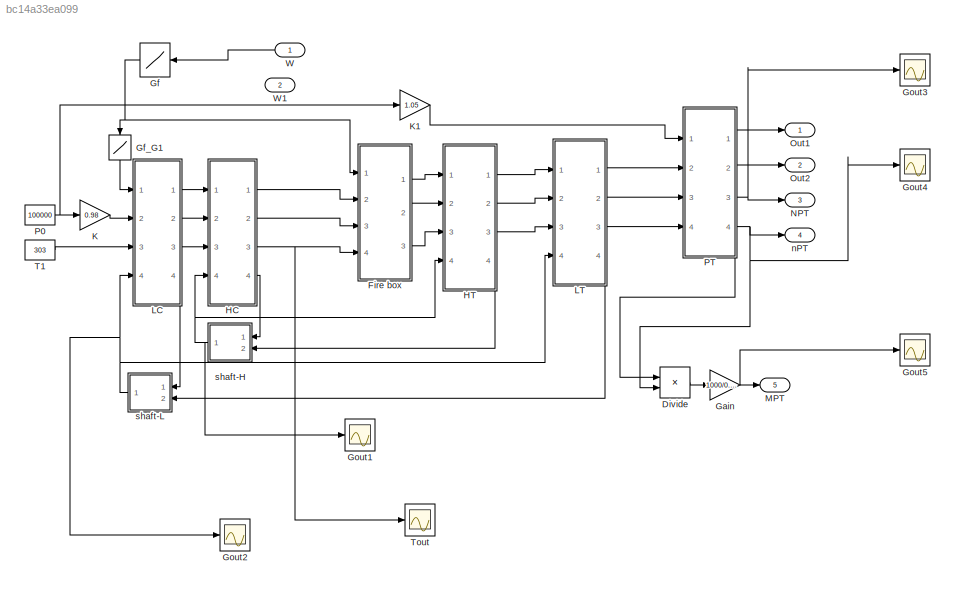
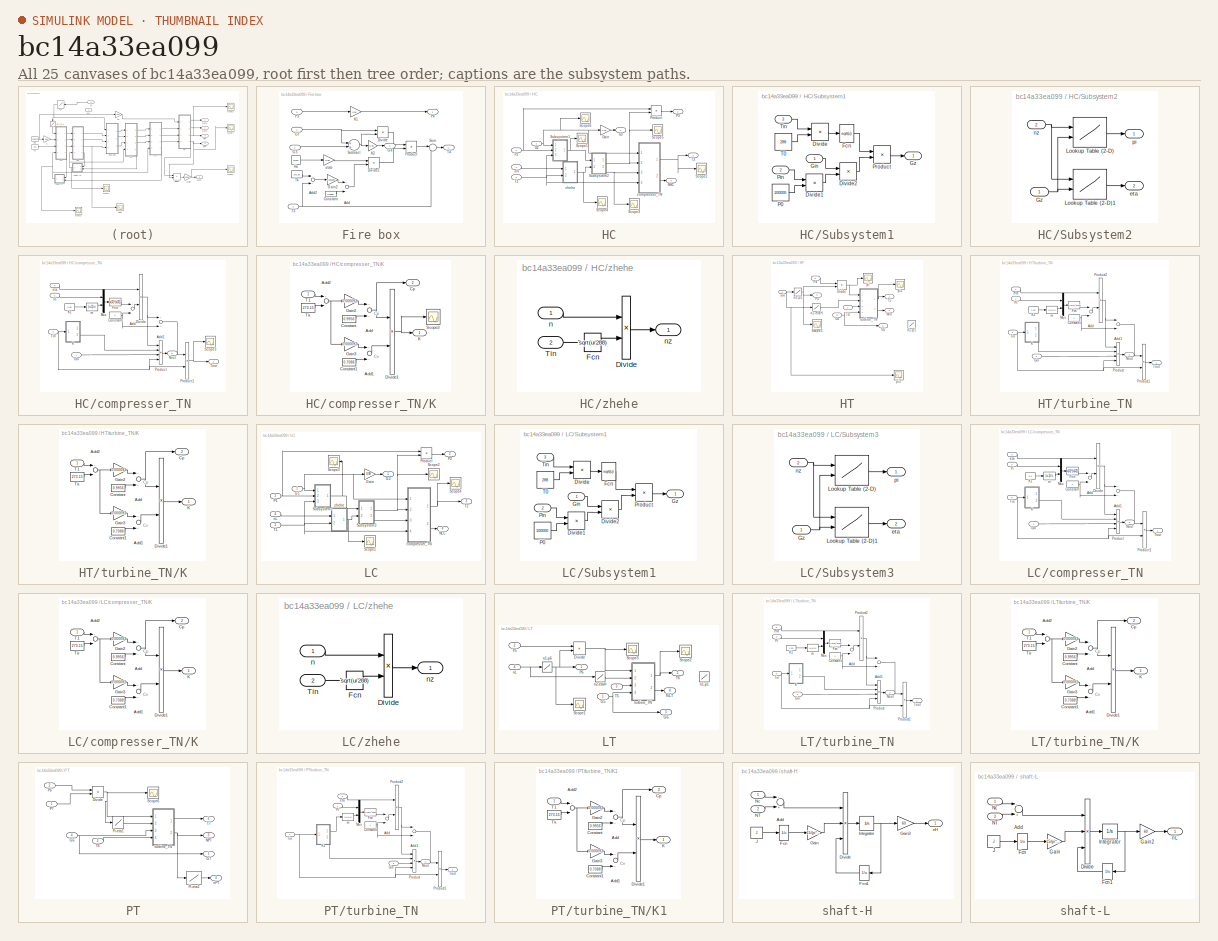
[diagram: thumbnail index - all 25 canvases of the model, root first then tree order]
MODEL slx_bc14a33ea099
KIND model
BLOCK [Product] Divide
  InputSameDT = off
  Inputs = */
  OutDataTypeStr = Inherit: Inherit via internal rule
  Ports = [2, 1]
  RndMeth = Floor
  SaturateOnIntegerOverflow = off
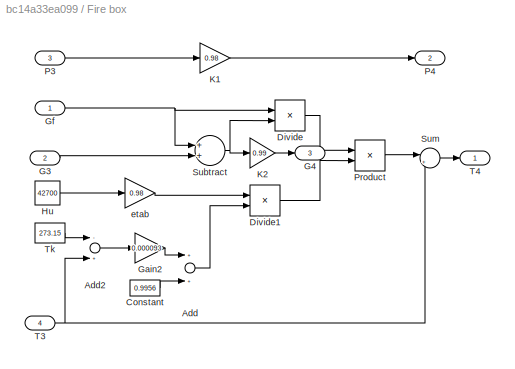
BLOCK [SubSystem] Fire box
  Ports = [4, 3]
  RequestExecContextInheritance = off
BLOCK [Sum] Fire box/Add
  InputSameDT = off
  OutDataTypeStr = Inherit: Inherit via internal rule
  Ports = [2, 1]
  SaturateOnIntegerOverflow = off
BLOCK [Sum] Fire box/Add2
  InputSameDT = off
  Inputs = -+
  OutDataTypeStr = Inherit: Inherit via internal rule
  Ports = [2, 1]
  SaturateOnIntegerOverflow = off
BLOCK [Constant] Fire box/Constant
  Value = 0.9956
BLOCK [Product] Fire box/Divide
  InputSameDT = off
  Inputs = */
  OutDataTypeStr = Inherit: Inherit via internal rule
  Ports = [2, 1]
  RndMeth = Floor
  SaturateOnIntegerOverflow = off
BLOCK [Product] Fire box/Divide1
  InputSameDT = off
  Inputs = */
  OutDataTypeStr = Inherit: Inherit via internal rule
  Ports = [2, 1]
  RndMeth = Floor
  SaturateOnIntegerOverflow = off
BLOCK [Inport] Fire box/G3
  IconDisplay = Port number
  Port = 2
BLOCK [Outport] Fire box/G4
  IconDisplay = Port number
  Port = 3
BLOCK [Gain] Fire box/Gain2
  Gain = 0.000093
  OutDataTypeStr = Inherit: Inherit via internal rule
  ParamDataTypeStr = Inherit: Inherit via internal rule
  SaturateOnIntegerOverflow = off
BLOCK [Inport] Fire box/Gf
  IconDisplay = Port number
BLOCK [Constant] Fire box/Hu
  Value = 42700
BLOCK [Gain] Fire box/K1
  Gain = 0.98
  OutDataTypeStr = Inherit: Inherit via internal rule
  ParamDataTypeStr = Inherit: Inherit via internal rule
  SaturateOnIntegerOverflow = off
BLOCK [Gain] Fire box/K2
  Gain = 0.99
  OutDataTypeStr = Inherit: Inherit via internal rule
  ParamDataTypeStr = Inherit: Inherit via internal rule
  SaturateOnIntegerOverflow = off
BLOCK [Inport] Fire box/P3
  IconDisplay = Port number
  Port = 3
BLOCK [Outport] Fire box/P4
  IconDisplay = Port number
  Port = 2
BLOCK [Product] Fire box/Product
  InputSameDT = off
  OutDataTypeStr = Inherit: Inherit via internal rule
  Ports = [2, 1]
  SaturateOnIntegerOverflow = off
BLOCK [Sum] Fire box/Subtract
  InputSameDT = off
  OutDataTypeStr = Inherit: Inherit via internal rule
  Ports = [2, 1]
  SaturateOnIntegerOverflow = off
BLOCK [Sum] Fire box/Sum
  IconShape = round
  InputSameDT = off
  Inputs = |++
  OutDataTypeStr = Inherit: Inherit via internal rule
  Ports = [2, 1]
  SaturateOnIntegerOverflow = off
BLOCK [Inport] Fire box/T3
  IconDisplay = Port number
  Port = 4
BLOCK [Outport] Fire box/T4
  IconDisplay = Port number
BLOCK [Constant] Fire box/Tk
  Value = 273.15
BLOCK [Gain] Fire box/etab
  Gain = 0.98
  OutDataTypeStr = Inherit: Inherit via internal rule
  ParamDataTypeStr = Inherit: Inherit via internal rule
  SaturateOnIntegerOverflow = off
BLOCK [Gain] Gain
  Gain = 1000/0.7355
  OutDataTypeStr = Inherit: Inherit via internal rule
  ParamDataTypeStr = Inherit: Inherit via internal rule
  SaturateOnIntegerOverflow = off
BLOCK [Lookup] Gf
  InputValues = [0,0.03,0.07,0.09,0.11,0.13,0.17,0.2,0.23,0.26,0.28,0.3,0.32,0.34,0.35,0.38,0.4,0.42,0.44,0.47,0.49,0.5,0.52,0.54,0.55,0.59,0.61,0.64,0.66,0.68,0.7,0.72,0.74,0.77,0.81,0.83,0.85,0.88,0.93,0.95,0.97,1]
  SaturateOnIntegerOverflow = off
  Table = [0.172,0.236,0.331,0.331,0.366,0.411,0.488,0.536,0.582,0.605,0.644,0.682,0.698,0.728,0.727,0.783,0.783,0.813,0.857,0.886,0.935,0.949,0.95,0.975,0.999,1.022,1.069,1.149,1.153,1.184,1.206,1.233,1.256,1.271,1.325,1.383,1.383,1.439,1.481,1.504,1.52,1.574]
BLOCK [Lookup] Gf_G1
  InputValues = [0.172,0.236,0.331,0.366,0.411,0.488,0.536,0.582,0.605,0.644,0.682,0.698,0.727,0.728,0.783,0.813,0.857,0.886,0.935,0.949,0.95,0.975,0.999,1.022,1.069,1.149,1.153,1.184,1.206,1.233,1.256,1.271,1.325,1.383,1.439,1.481,1.504,1.52,1.574]
  SaturateOnIntegerOverflow = off
  Table = [20.01, 25.93, 38.77,  43.65, 45.94, 51.85, 54.70, 56.85, 59.03, 61.91, 60.44, 61.58, 62.93, 63.04, 65.71,   67.00, 69.52, 70.63, 73.19, 73.46, 73.44, 73.83, 75.62, 76.39, 78.27, 81.17, 81.50, 82.44, 83.44, 84.31, 85.30, 86.17, 87.93, 89.72, 91.51, 93.65, 94.63, 94.92, 97.64]
BLOCK [Scope] Gout1
  DataFormat = StructureWithTime
  Floating = off
  NumInputPorts = 1
  Ports = [1]
  SampleTime = 0
  ShowLegends = off
  TimeRange = 10
  ZoomMode = yonly
BLOCK [Scope] Gout2
  DataFormat = StructureWithTime
  Floating = off
  NumInputPorts = 1
  Ports = [1]
  SampleTime = 0
  SaveName = ScopeData3
  ShowLegends = off
  TimeRange = 10
  ZoomMode = yonly
BLOCK [Scope] Gout3
  DataFormat = StructureWithTime
  Floating = off
  NumInputPorts = 1
  Ports = [1]
  SampleTime = 0
  SaveName = ScopeData21
  ShowLegends = off
  TimeRange = 10
  ZoomMode = yonly
BLOCK [Scope] Gout4
  DataFormat = StructureWithTime
  Floating = off
  NumInputPorts = 1
  Ports = [1]
  SampleTime = 0
  SaveName = ScopeData2
  ShowLegends = off
  TimeRange = 10
  ZoomMode = yonly
BLOCK [Scope] Gout5
  DataFormat = StructureWithTime
  Floating = off
  NumInputPorts = 1
  Ports = [1]
  SampleTime = 0
  SaveName = ScopeData5
  ShowLegends = off
  TimeRange = 10
  ZoomMode = yonly
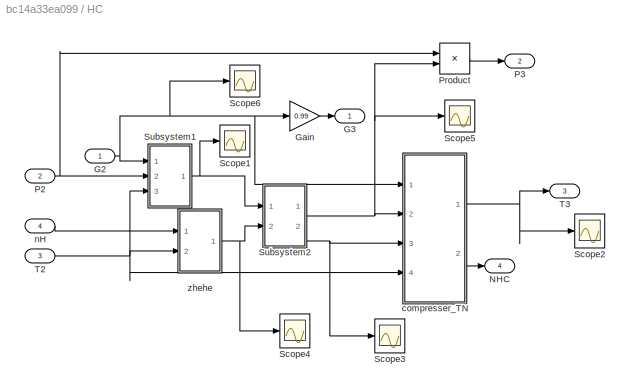
BLOCK [SubSystem] HC
  Ports = [4, 4]
  RequestExecContextInheritance = off
BLOCK [Inport] HC/G2
  IconDisplay = Port number
BLOCK [Outport] HC/G3
  IconDisplay = Port number
BLOCK [Gain] HC/Gain
  Gain = 0.99
  OutDataTypeStr = Inherit: Inherit via internal rule
  ParamDataTypeStr = Inherit: Inherit via internal rule
  SaturateOnIntegerOverflow = off
BLOCK [Outport] HC/NHC
  IconDisplay = Port number
  Port = 4
BLOCK [Inport] HC/P2
  IconDisplay = Port number
  Port = 2
BLOCK [Outport] HC/P3
  IconDisplay = Port number
  Port = 2
BLOCK [Product] HC/Product
  InputSameDT = off
  OutDataTypeStr = Inherit: Inherit via internal rule
  Ports = [2, 1]
  SaturateOnIntegerOverflow = off
BLOCK [Scope] HC/Scope1
  DataFormat = StructureWithTime
  Floating = off
  NumInputPorts = 1
  Ports = [1]
  SampleTime = 0
  SaveName = ScopeData16
  ShowLegends = off
  YMax = 3127.38
  YMin = 2829.54
BLOCK [Scope] HC/Scope2
  DataFormat = StructureWithTime
  Floating = off
  NumInputPorts = 1
  Ports = [1]
  SampleTime = 0
  SaveName = ScopeData29
  ShowLegends = off
  YMax = 3127.38
  YMin = 2829.54
BLOCK [Scope] HC/Scope3
  DataFormat = StructureWithTime
  Floating = off
  NumInputPorts = 1
  Ports = [1]
  SampleTime = 0
  SaveName = ScopeData24
  ShowLegends = off
  YMax = 3127.38
  YMin = 2829.54
BLOCK [Scope] HC/Scope4
  DataFormat = StructureWithTime
  Floating = off
  NumInputPorts = 1
  Ports = [1]
  SampleTime = 0
  SaveName = ScopeData31
  ShowLegends = off
  YMax = 3127.38
  YMin = 2829.54
BLOCK [Scope] HC/Scope5
  DataFormat = StructureWithTime
  Floating = off
  NumInputPorts = 1
  Ports = [1]
  SampleTime = 0
  SaveName = ScopeData10
  ShowLegends = off
  YMax = 3127.38
  YMin = 2829.54
BLOCK [Scope] HC/Scope6
  DataFormat = StructureWithTime
  Floating = off
  NumInputPorts = 1
  Ports = [1]
  SampleTime = 0
  SaveName = ScopeData15
  ShowLegends = off
  YMax = 3127.38
  YMin = 2829.54
BLOCK [SubSystem] HC/Subsystem1
  Ports = [3, 1]
  RequestExecContextInheritance = off
BLOCK [Product] HC/Subsystem1/Divide
  InputSameDT = off
  Inputs = */
  OutDataTypeStr = Inherit: Inherit via internal rule
  Ports = [2, 1]
  RndMeth = Floor
  SaturateOnIntegerOverflow = off
BLOCK [Product] HC/Subsystem1/Divide1
  InputSameDT = off
  Inputs = */
  OutDataTypeStr = Inherit: Inherit via internal rule
  Ports = [2, 1]
  RndMeth = Floor
  SaturateOnIntegerOverflow = off
BLOCK [Product] HC/Subsystem1/Divide2
  InputSameDT = off
  Inputs = */
  OutDataTypeStr = Inherit: Inherit via internal rule
  Ports = [2, 1]
  RndMeth = Floor
  SaturateOnIntegerOverflow = off
BLOCK [Fcn] HC/Subsystem1/Fcn
  Expr = sqrt(u)
BLOCK [Inport] HC/Subsystem1/Gin
  IconDisplay = Port number
BLOCK [Outport] HC/Subsystem1/Gz
  IconDisplay = Port number
BLOCK [Constant] HC/Subsystem1/P0
  Value = 100000
BLOCK [Inport] HC/Subsystem1/Pin
  IconDisplay = Port number
  Port = 2
BLOCK [Product] HC/Subsystem1/Product
  InputSameDT = off
  OutDataTypeStr = Inherit: Inherit via internal rule
  Ports = [2, 1]
  SaturateOnIntegerOverflow = off
BLOCK [Constant] HC/Subsystem1/T0
  Value = 288
BLOCK [Inport] HC/Subsystem1/Tin
  IconDisplay = Port number
  Port = 3
BLOCK [SubSystem] HC/Subsystem2
  Ports = [2, 2]
  RequestExecContextInheritance = off
BLOCK [Inport] HC/Subsystem2/Gz
  IconDisplay = Port number
BLOCK [Lookup2D] HC/Subsystem2/Lookup Table (2-D)
  ColumnIndex = [12:0.2:29]
  InputSameDT = off
  RowIndex = [6000 6300 6500 6800 7000 7300 7500 7800]
  SaturateOnIntegerOverflow = off
  Table = [2.4803 2.5510 2.6217 2.6924 2.7630 2.8337 2.9044 2.9751 3.0172 2.9863 2.9541 2.9206 2.8860 2.8500 2.8129 2.7745 2.7349 2.6940 2.6519 2.6085 2.5640 2.5181 2.4711 2.4906 2.5237 2.5573 2.5913 2.6257 2.6605 2.6958 2.7314 2.7675 2.8040 2.8409 2.8783 2.9161 2.9543 2.9929 3.0319 3.0714 3.1112 3.1515 3.1923 3.2334 3.2750 3.3169 3.3593 3.4022 3.4454 3.4891 3.5332 3.5777 3.6226 3.6679 3.7137 3.7599 3.8065 ...<+4432ch>
BLOCK [Lookup2D] HC/Subsystem2/Lookup Table (2-D)1
  ColumnIndex = [12:0.2:29]
  InputSameDT = off
  RowIndex = [6000 6300 6500 6800 7000 7300 7500 7800]
  SaturateOnIntegerOverflow = off
  Table = [0.8450 0.8455 0.8460 0.8465 0.8470 0.8480 0.8490 0.8495 0.8500 0.8510 0.8520 0.8530 0.8540 0.8540 0.8540 0.8525 0.8510 0.8500 0.8490 0.8480 0.8470 0.8460 0.8450 0.8455 0.8460 0.8460 0.8460 0.8470 0.8480 0.8480 0.8480 0.8480 0.8480 0.8485 0.8490 0.8490 0.8490 0.8490 0.8490 0.8490 0.8490 0.8490 0.8490 0.8490 0.8490 0.8490 0.8490 0.8490 0.8490 0.8495 0.8500 0.8500 0.8500 0.8500 0.8500 0.8500 0.8500 ...<+4425ch>
BLOCK [Outport] HC/Subsystem2/eta
  IconDisplay = Port number
  Port = 2
BLOCK [Inport] HC/Subsystem2/nz
  IconDisplay = Port number
  Port = 2
BLOCK [Outport] HC/Subsystem2/pi
  IconDisplay = Port number
BLOCK [Inport] HC/T2
  IconDisplay = Port number
  Port = 3
BLOCK [Outport] HC/T3
  IconDisplay = Port number
  Port = 3
BLOCK [SubSystem] HC/compresser_TN
  Ports = [4, 2]
  RequestExecContextInheritance = off
BLOCK [Sum] HC/compresser_TN/Add
  InputSameDT = off
  Inputs = +-
  OutDataTypeStr = Inherit: Inherit via internal rule
  Ports = [2, 1]
  SaturateOnIntegerOverflow = off
BLOCK [Sum] HC/compresser_TN/Add1
  InputSameDT = off
  OutDataTypeStr = Inherit: Inherit via internal rule
  Ports = [2, 1]
  SaturateOnIntegerOverflow = off
BLOCK [Constant] HC/compresser_TN/Constant
BLOCK [Product] HC/compresser_TN/Divide
  InputSameDT = off
  Inputs = /*
  OutDataTypeStr = Inherit: Inherit via internal rule
  Ports = [2, 1]
  RndMeth = Floor
  SaturateOnIntegerOverflow = off
BLOCK [Fcn] HC/compresser_TN/Fcn
  Expr = u[1]^(u[2])
BLOCK [Inport] HC/compresser_TN/Gin
  IconDisplay = Port number
BLOCK [SubSystem] HC/compresser_TN/K
  Ports = [1, 2]
  RequestExecContextInheritance = off
BLOCK [Sum] HC/compresser_TN/K/Add
  InputSameDT = off
  OutDataTypeStr = Inherit: Inherit via internal rule
  Ports = [2, 1]
  SaturateOnIntegerOverflow = off
BLOCK [Sum] HC/compresser_TN/K/Add1
  InputSameDT = off
  OutDataTypeStr = Inherit: Inherit via internal rule
  Ports = [2, 1]
  SaturateOnIntegerOverflow = off
BLOCK [Sum] HC/compresser_TN/K/Add2
  InputSameDT = off
  Inputs = +-
  OutDataTypeStr = Inherit: Inherit via internal rule
  Ports = [2, 1]
  SaturateOnIntegerOverflow = off
BLOCK [Constant] HC/compresser_TN/K/Constant
  Value = 0.9956
BLOCK [Constant] HC/compresser_TN/K/Constant1
  Value = 0.7088
BLOCK [Outport] HC/compresser_TN/K/Cp
  IconDisplay = Port number
  Port = 2
BLOCK [Product] HC/compresser_TN/K/Divide1
  InputSameDT = off
  Inputs = */
  OutDataTypeStr = Inherit: Inherit via internal rule
  Ports = [2, 1]
  RndMeth = Floor
  SaturateOnIntegerOverflow = off
BLOCK [Gain] HC/compresser_TN/K/Gain2
  Gain = 0.000093
  OutDataTypeStr = Inherit: Inherit via internal rule
  ParamDataTypeStr = Inherit: Inherit via internal rule
  SaturateOnIntegerOverflow = off
BLOCK [Gain] HC/compresser_TN/K/Gain3
  Gain = 0.000093
  OutDataTypeStr = Inherit: Inherit via internal rule
  ParamDataTypeStr = Inherit: Inherit via internal rule
  SaturateOnIntegerOverflow = off
BLOCK [Outport] HC/compresser_TN/K/K
  IconDisplay = Port number
BLOCK [Scope] HC/compresser_TN/K/Scope3
  DataFormat = StructureWithTime
  Floating = off
  NumInputPorts = 1
  Ports = [1]
  SampleTime = 0
  SaveName = ScopeData23
  ShowLegends = off
  YMax = 3127.38
  YMin = 2829.54
BLOCK [Inport] HC/compresser_TN/K/T1
  IconDisplay = Port number
BLOCK [Constant] HC/compresser_TN/K/Tk
  Value = 273.15
BLOCK [Constant] HC/compresser_TN/K1
  Value = 1.35
BLOCK [Mux] HC/compresser_TN/Mux
  DisplayOption = bar
  Inputs = 2
  Ports = [2, 1]
BLOCK [Outport] HC/compresser_TN/Nout
  IconDisplay = Port number
  Port = 2
BLOCK [Inport] HC/compresser_TN/Pi
  IconDisplay = Port number
  Port = 2
BLOCK [Product] HC/compresser_TN/Product
  InputSameDT = off
  Inputs = 4
  OutDataTypeStr = Inherit: Inherit via internal rule
  Ports = [4, 1]
  SaturateOnIntegerOverflow = off
BLOCK [Product] HC/compresser_TN/Product1
  InputSameDT = off
  OutDataTypeStr = Inherit: Inherit via internal rule
  Ports = [2, 1]
  SaturateOnIntegerOverflow = off
BLOCK [Scope] HC/compresser_TN/Scope3
  DataFormat = StructureWithTime
  Floating = off
  NumInputPorts = 1
  Ports = [1]
  SampleTime = 0
  SaveName = ScopeData18
  ShowLegends = off
  YMax = 3127.38
  YMin = 2829.54
BLOCK [Inport] HC/compresser_TN/Tin
  IconDisplay = Port number
  Port = 4
BLOCK [Outport] HC/compresser_TN/Tout
  IconDisplay = Port number
BLOCK [Inport] HC/compresser_TN/eta
  IconDisplay = Port number
  Port = 3
BLOCK [Fcn] HC/compresser_TN/m
  Expr = (u-1)/u
BLOCK [Inport] HC/nH
  IconDisplay = Port number
  Port = 4
BLOCK [SubSystem] HC/zhehe
  Ports = [2, 1]
  RequestExecContextInheritance = off
BLOCK [Product] HC/zhehe/Divide
  InputSameDT = off
  Inputs = */
  OutDataTypeStr = Inherit: Inherit via internal rule
  Ports = [2, 1]
  RndMeth = Floor
  SaturateOnIntegerOverflow = off
BLOCK [Fcn] HC/zhehe/Fcn
  Expr = sqrt(u/288)
BLOCK [Inport] HC/zhehe/Tin
  IconDisplay = Port number
  Port = 2
BLOCK [Inport] HC/zhehe/n
  IconDisplay = Port number
BLOCK [Outport] HC/zhehe/nz
  IconDisplay = Port number
BLOCK [SubSystem] HT
  Ports = [4, 4]
  RequestExecContextInheritance = off
BLOCK [Product] HT/Divide
  InputSameDT = off
  Inputs = */
  OutDataTypeStr = Inherit: Inherit via internal rule
  Ports = [2, 1]
  RndMeth = Floor
  SaturateOnIntegerOverflow = off
BLOCK [Inport] HT/G4
  IconDisplay = Port number
  Port = 3
BLOCK [Outport] HT/G5
  IconDisplay = Port number
BLOCK [Outport] HT/NHT
  IconDisplay = Port number
  Port = 4
BLOCK [Inport] HT/P4
  IconDisplay = Port number
  Port = 2
BLOCK [Outport] HT/P5
  IconDisplay = Port number
  Port = 2
BLOCK [Scope] HT/Scope3
  DataFormat = StructureWithTime
  Floating = off
  NumInputPorts = 1
  Ports = [1]
  SampleTime = 0
  SaveName = ScopeData34
  ShowLegends = off
  TimeRange = 100
  YMax = 25000
  YMin = 5000
  ZoomMode = yonly
BLOCK [Inport] HT/T4
  IconDisplay = Port number
BLOCK [Outport] HT/T5
  IconDisplay = Port number
  Port = 3
BLOCK [Lookup] HT/n2-etaH
  InputValues = [6000 6300 6500 6800 7000 7150 7300 7500 7800]
  SaturateOnIntegerOverflow = off
  Table = [0.81 0.83 0.85 0.87 0.88 0.87 0.86 0.855 0.85]
BLOCK [Lookup] HT/n2-p1
  InputValues = [6000 6503 6995 7498 8002 8505 8997 9500]
  SaturateOnIntegerOverflow = off
  Table = [139400 150700 186000 246700 332500 443400 575800 736100]
BLOCK [Lookup] HT/n2-p5
  InputValues = [5832,7212,7282,7644,7752,7853,8033,8092 8211 8392 8430 8452 8670 8767 8960 8999 9073]
  SaturateOnIntegerOverflow = off
  Table = [154000,269000,296000,361000,391000,419000,476000,494000 534000 596000 609000 616000 684000 719000 806000 814000 831000]
BLOCK [Inport] HT/nH
  IconDisplay = Port number
  Port = 4
BLOCK [Scope] HT/pi
  DataFormat = StructureWithTime
  Floating = off
  NumInputPorts = 1
  Ports = [1]
  SampleTime = 0
  SaveName = ScopeData17
  ShowLegends = off
  TimeRange = 100
  YMax = 3127.38
  YMin = 2829.54
BLOCK [Scope] HT/pi1
  DataFormat = StructureWithTime
  Floating = off
  NumInputPorts = 1
  Ports = [1]
  SampleTime = 0
  SaveName = ScopeData7
  ShowLegends = off
  TimeRange = 100
  YMax = 3127.38
  YMin = 2829.54
BLOCK [Scope] HT/pi2
  DataFormat = StructureWithTime
  Floating = off
  NumInputPorts = 1
  Ports = [1]
  SampleTime = 0
  SaveName = ScopeData35
  ShowLegends = off
  TimeRange = 100
  YMax = 3127.38
  YMin = 2829.54
BLOCK [SubSystem] HT/turbine_TN
  Ports = [4, 2]
  RequestExecContextInheritance = off
BLOCK [Sum] HT/turbine_TN/Add
  InputSameDT = off
  Inputs = -+
  OutDataTypeStr = Inherit: Inherit via internal rule
  Ports = [2, 1]
  SaturateOnIntegerOverflow = off
BLOCK [Sum] HT/turbine_TN/Add1
  InputSameDT = off
  Inputs = -+
  OutDataTypeStr = Inherit: Inherit via internal rule
  Ports = [2, 1]
  SaturateOnIntegerOverflow = off
BLOCK [Constant] HT/turbine_TN/Constant
BLOCK [Fcn] HT/turbine_TN/Fcn
  Expr = 1/(u[1]^u[2])
BLOCK [Inport] HT/turbine_TN/Gin
  IconDisplay = Port number
  Port = 4
BLOCK [SubSystem] HT/turbine_TN/K
  Ports = [1, 2]
  RequestExecContextInheritance = off
BLOCK [Sum] HT/turbine_TN/K/Add
  InputSameDT = off
  OutDataTypeStr = Inherit: Inherit via internal rule
  Ports = [2, 1]
  SaturateOnIntegerOverflow = off
BLOCK [Sum] HT/turbine_TN/K/Add1
  InputSameDT = off
  OutDataTypeStr = Inherit: Inherit via internal rule
  Ports = [2, 1]
  SaturateOnIntegerOverflow = off
BLOCK [Sum] HT/turbine_TN/K/Add2
  InputSameDT = off
  Inputs = +-
  OutDataTypeStr = Inherit: Inherit via internal rule
  Ports = [2, 1]
  SaturateOnIntegerOverflow = off
BLOCK [Constant] HT/turbine_TN/K/Constant
  Value = 0.9956
BLOCK [Constant] HT/turbine_TN/K/Constant1
  Value = 0.7088
BLOCK [Outport] HT/turbine_TN/K/Cp
  IconDisplay = Port number
  Port = 2
BLOCK [Product] HT/turbine_TN/K/Divide1
  InputSameDT = off
  Inputs = */
  OutDataTypeStr = Inherit: Inherit via internal rule
  Ports = [2, 1]
  RndMeth = Floor
  SaturateOnIntegerOverflow = off
BLOCK [Gain] HT/turbine_TN/K/Gain2
  Gain = 0.000093
  OutDataTypeStr = Inherit: Inherit via internal rule
  ParamDataTypeStr = Inherit: Inherit via internal rule
  SaturateOnIntegerOverflow = off
BLOCK [Gain] HT/turbine_TN/K/Gain3
  Gain = 0.000093
  OutDataTypeStr = Inherit: Inherit via internal rule
  ParamDataTypeStr = Inherit: Inherit via internal rule
  SaturateOnIntegerOverflow = off
BLOCK [Outport] HT/turbine_TN/K/K
  IconDisplay = Port number
BLOCK [Inport] HT/turbine_TN/K/T1
  IconDisplay = Port number
BLOCK [Constant] HT/turbine_TN/K/Tk
  Value = 273.15
BLOCK [Constant] HT/turbine_TN/K1
  Value = 1.33
BLOCK [Mux] HT/turbine_TN/Mux
  DisplayOption = bar
  Inputs = 2
  Ports = [2, 1]
BLOCK [Outport] HT/turbine_TN/Nout
  IconDisplay = Port number
  Port = 2
BLOCK [Inport] HT/turbine_TN/Pi
  IconDisplay = Port number
BLOCK [Product] HT/turbine_TN/Product
  InputSameDT = off
  Inputs = 4
  OutDataTypeStr = Inherit: Inherit via internal rule
  Ports = [4, 1]
  SaturateOnIntegerOverflow = off
BLOCK [Product] HT/turbine_TN/Product1
  InputSameDT = off
  OutDataTypeStr = Inherit: Inherit via internal rule
  Ports = [2, 1]
  SaturateOnIntegerOverflow = off
BLOCK [Product] HT/turbine_TN/Product2
  InputSameDT = off
  OutDataTypeStr = Inherit: Inherit via internal rule
  Ports = [2, 1]
  SaturateOnIntegerOverflow = off
BLOCK [Inport] HT/turbine_TN/Tin
  IconDisplay = Port number
  Port = 3
BLOCK [Outport] HT/turbine_TN/Tout
  IconDisplay = Port number
BLOCK [Inport] HT/turbine_TN/eta
  IconDisplay = Port number
  Port = 2
BLOCK [Fcn] HT/turbine_TN/m
  Expr = (u-1)/u
BLOCK [Gain] K
  Gain = 0.98
  OutDataTypeStr = Inherit: Inherit via internal rule
  ParamDataTypeStr = Inherit: Inherit via internal rule
  SaturateOnIntegerOverflow = off
BLOCK [Gain] K1
  Gain = 1.05
  OutDataTypeStr = Inherit: Inherit via internal rule
  ParamDataTypeStr = Inherit: Inherit via internal rule
  SaturateOnIntegerOverflow = off
BLOCK [SubSystem] LC
  Ports = [4, 4]
  RequestExecContextInheritance = off
BLOCK [Inport] LC/G1
  IconDisplay = Port number
BLOCK [Outport] LC/G2
  IconDisplay = Port number
BLOCK [Gain] LC/Gain
  Gain = 0.99
  OutDataTypeStr = Inherit: Inherit via internal rule
  ParamDataTypeStr = Inherit: Inherit via internal rule
  SaturateOnIntegerOverflow = off
BLOCK [Outport] LC/NLC
  IconDisplay = Port number
  Port = 4
BLOCK [Inport] LC/P1
  IconDisplay = Port number
  Port = 2
BLOCK [Outport] LC/P2
  IconDisplay = Port number
  Port = 2
BLOCK [Product] LC/Product
  InputSameDT = off
  OutDataTypeStr = Inherit: Inherit via internal rule
  Ports = [2, 1]
  SaturateOnIntegerOverflow = off
BLOCK [Scope] LC/Scope1
  DataFormat = StructureWithTime
  Floating = off
  NumInputPorts = 1
  Ports = [1]
  SampleTime = 0
  SaveName = ScopeData14
  ShowLegends = off
  YMax = 3127.38
  YMin = 2829.54
BLOCK [Scope] LC/Scope2
  DataFormat = StructureWithTime
  Floating = off
  NumInputPorts = 1
  Ports = [1]
  SampleTime = 0
  SaveName = ScopeData9
  ShowLegends = off
  YMax = 3127.38
  YMin = 2829.54
BLOCK [Scope] LC/Scope3
  DataFormat = StructureWithTime
  Floating = off
  NumInputPorts = 1
  Ports = [1]
  SampleTime = 0
  SaveName = ScopeData30
  ShowLegends = off
  YMax = 3127.38
  YMin = 2829.54
BLOCK [Scope] LC/Scope4
  DataFormat = StructureWithTime
  Floating = off
  NumInputPorts = 1
  Ports = [1]
  SampleTime = 0
  SaveName = ScopeData32
  ShowLegends = off
  TimeRange = 80
  YMax = 30000
  YMin = 5000
  ZoomMode = yonly
BLOCK [SubSystem] LC/Subsystem1
  Ports = [3, 1]
  RequestExecContextInheritance = off
BLOCK [Product] LC/Subsystem1/Divide
  InputSameDT = off
  Inputs = */
  OutDataTypeStr = Inherit: Inherit via internal rule
  Ports = [2, 1]
  RndMeth = Floor
  SaturateOnIntegerOverflow = off
BLOCK [Product] LC/Subsystem1/Divide1
  InputSameDT = off
  Inputs = */
  OutDataTypeStr = Inherit: Inherit via internal rule
  Ports = [2, 1]
  RndMeth = Floor
  SaturateOnIntegerOverflow = off
BLOCK [Product] LC/Subsystem1/Divide2
  InputSameDT = off
  Inputs = */
  OutDataTypeStr = Inherit: Inherit via internal rule
  Ports = [2, 1]
  RndMeth = Floor
  SaturateOnIntegerOverflow = off
BLOCK [Fcn] LC/Subsystem1/Fcn
  Expr = sqrt(u)
BLOCK [Inport] LC/Subsystem1/Gin
  IconDisplay = Port number
BLOCK [Outport] LC/Subsystem1/Gz
  IconDisplay = Port number
BLOCK [Constant] LC/Subsystem1/P0
  Value = 100000
BLOCK [Inport] LC/Subsystem1/Pin
  IconDisplay = Port number
  Port = 2
BLOCK [Product] LC/Subsystem1/Product
  InputSameDT = off
  OutDataTypeStr = Inherit: Inherit via internal rule
  Ports = [2, 1]
  SaturateOnIntegerOverflow = off
BLOCK [Constant] LC/Subsystem1/T0
  Value = 288
BLOCK [Inport] LC/Subsystem1/Tin
  IconDisplay = Port number
  Port = 3
BLOCK [SubSystem] LC/Subsystem3
  Ports = [2, 2]
  RequestExecContextInheritance = off
BLOCK [Inport] LC/Subsystem3/Gz
  IconDisplay = Port number
BLOCK [Lookup2D] LC/Subsystem3/Lookup Table (2-D)
  ColumnIndex = [20:0.5:100]
  InputSameDT = off
  RowIndex = [4300 5000 5500 6000 6500 7000 7500 8000]
  SaturateOnIntegerOverflow = off
  Table = [1.1111 1.1471 1.1832 1.2192 1.2552 1.2913 1.3273 1.3633 1.3994 1.4354 1.4714 1.5074 1.5435 1.5795 1.6155 1.6516 1.6876 1.7236 1.8750 1.8749 1.8720 1.8623 1.8457 1.8223 1.7920 1.7549 1.7109 1.6601 1.6024 1.5378 1.4664 1.3881 1.2420 1.2701 1.2983 1.3265 1.3547 1.3828 1.4110 1.4392 1.4673 1.4955 1.5237 1.5519 1.5800 1.6082 1.6364 1.6645 1.6927 1.7209 1.7491 1.7772 1.8054 1.8336 1.8617 1.8899 1.9181 ...<+8625ch>
BLOCK [Lookup2D] LC/Subsystem3/Lookup Table (2-D)1
  ColumnIndex = [20:0.5:100]
  InputSameDT = off
  RowIndex = [4300 5000 5500 6000 6500 7000 7500 8000]
  SaturateOnIntegerOverflow = off
  Table = [0.8303 0.8307 0.8310 0.8314 0.8317 0.8321 0.8324 0.8327 0.8331 0.8335 0.8338 0.8341 0.8345 0.8348 0.8351 0.8355 0.8358 0.8361 0.8371 0.8390 0.8403 0.8412 0.8415 0.8412 0.8405 0.8392 0.8373 0.8350 0.8321 0.8287 0.8247 0.8203 0.8200 0.8200 0.8200 0.8200 0.8200 0.8200 0.8200 0.8200 0.8200 0.8200 0.8200 0.8200 0.8200 0.8200 0.8200 0.8200 0.8200 0.8200 0.8200 0.8200 0.8200 0.8200 0.8200 0.8200 0.8200 ...<+8625ch>
BLOCK [Outport] LC/Subsystem3/eta
  IconDisplay = Port number
  Port = 2
BLOCK [Inport] LC/Subsystem3/nz
  IconDisplay = Port number
  Port = 2
BLOCK [Outport] LC/Subsystem3/pi
  IconDisplay = Port number
BLOCK [Inport] LC/T1
  IconDisplay = Port number
  Port = 3
BLOCK [Outport] LC/T2
  IconDisplay = Port number
  Port = 3
BLOCK [SubSystem] LC/compresser_TN
  Ports = [4, 2]
  RequestExecContextInheritance = off
BLOCK [Sum] LC/compresser_TN/Add
  InputSameDT = off
  Inputs = +-
  OutDataTypeStr = Inherit: Inherit via internal rule
  Ports = [2, 1]
  SaturateOnIntegerOverflow = off
BLOCK [Sum] LC/compresser_TN/Add1
  InputSameDT = off
  OutDataTypeStr = Inherit: Inherit via internal rule
  Ports = [2, 1]
  SaturateOnIntegerOverflow = off
BLOCK [Constant] LC/compresser_TN/Constant
BLOCK [Product] LC/compresser_TN/Divide
  InputSameDT = off
  Inputs = /*
  OutDataTypeStr = Inherit: Inherit via internal rule
  Ports = [2, 1]
  RndMeth = Floor
  SaturateOnIntegerOverflow = off
BLOCK [Fcn] LC/compresser_TN/Fcn
  Expr = u[1]^(u[2])
BLOCK [Inport] LC/compresser_TN/Gin
  IconDisplay = Port number
BLOCK [SubSystem] LC/compresser_TN/K
  Ports = [1, 2]
  RequestExecContextInheritance = off
BLOCK [Sum] LC/compresser_TN/K/Add
  InputSameDT = off
  OutDataTypeStr = Inherit: Inherit via internal rule
  Ports = [2, 1]
  SaturateOnIntegerOverflow = off
BLOCK [Sum] LC/compresser_TN/K/Add1
  InputSameDT = off
  OutDataTypeStr = Inherit: Inherit via internal rule
  Ports = [2, 1]
  SaturateOnIntegerOverflow = off
BLOCK [Sum] LC/compresser_TN/K/Add2
  InputSameDT = off
  Inputs = +-
  OutDataTypeStr = Inherit: Inherit via internal rule
  Ports = [2, 1]
  SaturateOnIntegerOverflow = off
BLOCK [Constant] LC/compresser_TN/K/Constant
  Value = 0.9956
BLOCK [Constant] LC/compresser_TN/K/Constant1
  Value = 0.7088
BLOCK [Outport] LC/compresser_TN/K/Cp
  IconDisplay = Port number
  Port = 2
BLOCK [Product] LC/compresser_TN/K/Divide1
  InputSameDT = off
  Inputs = */
  OutDataTypeStr = Inherit: Inherit via internal rule
  Ports = [2, 1]
  RndMeth = Floor
  SaturateOnIntegerOverflow = off
BLOCK [Gain] LC/compresser_TN/K/Gain2
  Gain = 0.000093
  OutDataTypeStr = Inherit: Inherit via internal rule
  ParamDataTypeStr = Inherit: Inherit via internal rule
  SaturateOnIntegerOverflow = off
BLOCK [Gain] LC/compresser_TN/K/Gain3
  Gain = 0.000093
  OutDataTypeStr = Inherit: Inherit via internal rule
  ParamDataTypeStr = Inherit: Inherit via internal rule
  SaturateOnIntegerOverflow = off
BLOCK [Outport] LC/compresser_TN/K/K
  IconDisplay = Port number
BLOCK [Inport] LC/compresser_TN/K/T1
  IconDisplay = Port number
BLOCK [Constant] LC/compresser_TN/K/Tk
  Value = 273.15
BLOCK [Constant] LC/compresser_TN/K1
  Value = 1.4
BLOCK [Mux] LC/compresser_TN/Mux
  DisplayOption = bar
  Inputs = 2
  Ports = [2, 1]
BLOCK [Outport] LC/compresser_TN/Nout
  IconDisplay = Port number
  Port = 2
BLOCK [Inport] LC/compresser_TN/Pi
  IconDisplay = Port number
  Port = 2
BLOCK [Product] LC/compresser_TN/Product
  InputSameDT = off
  Inputs = 4
  OutDataTypeStr = Inherit: Inherit via internal rule
  Ports = [4, 1]
  SaturateOnIntegerOverflow = off
BLOCK [Product] LC/compresser_TN/Product1
  InputSameDT = off
  OutDataTypeStr = Inherit: Inherit via internal rule
  Ports = [2, 1]
  SaturateOnIntegerOverflow = off
BLOCK [Inport] LC/compresser_TN/Tin
  IconDisplay = Port number
  Port = 4
BLOCK [Outport] LC/compresser_TN/Tout
  IconDisplay = Port number
BLOCK [Inport] LC/compresser_TN/eta
  IconDisplay = Port number
  Port = 3
BLOCK [Fcn] LC/compresser_TN/m
  Expr = (u-1)/u
BLOCK [Inport] LC/nL
  IconDisplay = Port number
  Port = 4
BLOCK [SubSystem] LC/zhehe
  Ports = [2, 1]
  RequestExecContextInheritance = off
BLOCK [Product] LC/zhehe/Divide
  InputSameDT = off
  Inputs = */
  OutDataTypeStr = Inherit: Inherit via internal rule
  Ports = [2, 1]
  RndMeth = Floor
  SaturateOnIntegerOverflow = off
BLOCK [Fcn] LC/zhehe/Fcn
  Expr = sqrt(u/288)
BLOCK [Inport] LC/zhehe/Tin
  IconDisplay = Port number
  Port = 2
BLOCK [Inport] LC/zhehe/n
  IconDisplay = Port number
BLOCK [Outport] LC/zhehe/nz
  IconDisplay = Port number
BLOCK [SubSystem] LT
  Ports = [4, 4]
  RequestExecContextInheritance = off
BLOCK [Product] LT/Divide
  InputSameDT = off
  Inputs = */
  OutDataTypeStr = Inherit: Inherit via internal rule
  Ports = [2, 1]
  RndMeth = Floor
  SaturateOnIntegerOverflow = off
BLOCK [Inport] LT/G5
  IconDisplay = Port number
BLOCK [Outport] LT/G6
  IconDisplay = Port number
  Port = 3
BLOCK [Outport] LT/NLT
  IconDisplay = Port number
  Port = 4
BLOCK [Inport] LT/P5
  IconDisplay = Port number
  Port = 2
BLOCK [Outport] LT/P6
  IconDisplay = Port number
BLOCK [Scope] LT/Scope1
  DataFormat = StructureWithTime
  Floating = off
  NumInputPorts = 1
  Ports = [1]
  SampleTime = 0
  SaveName = ScopeData28
  ShowLegends = off
  TimeRange = 100
  YMax = 25000
  YMin = 5000
  ZoomMode = yonly
BLOCK [Scope] LT/Scope2
  DataFormat = StructureWithTime
  Floating = off
  NumInputPorts = 1
  Ports = [1]
  SampleTime = 0
  SaveName = ScopeData4
  ShowLegends = off
  TimeRange = 100
  YMax = 25000
  YMin = 5000
  ZoomMode = yonly
BLOCK [Scope] LT/Scope3
  DataFormat = StructureWithTime
  Floating = off
  NumInputPorts = 1
  Ports = [1]
  SampleTime = 0
  SaveName = ScopeData20
  ShowLegends = off
  TimeRange = 100
  YMax = 25000
  YMin = 5000
  ZoomMode = yonly
BLOCK [Inport] LT/T5
  IconDisplay = Port number
  Port = 3
BLOCK [Outport] LT/T6
  IconDisplay = Port number
  Port = 2
BLOCK [Lookup] LT/n1-p1
  InputValues = [2849,4651,4850,5410,5586,5742,6024,6092,6102,6211,6385,6425 6435 6609 6698  6732 7015  7080 7185 ]
  SaturateOnIntegerOverflow = off
  Table = [101000,131000,141000,161000,171000,181000,201000,201000,211000,221000,241000,251000 251000 281000 291000  301000 321000  331000 341000]
BLOCK [Lookup] LT/n1-p6
  InputValues = [2849,4651,4850,5410,5586,5742,6024,6092,6102,6211,6385,6425,6435,6609,6698,6732,7015,7080,7185]
  SaturateOnIntegerOverflow = off
  Table = [113000,150000,157000,180000,190000,201000,221000,229000,229500,242000,267000,272000,277000,306000,321000,322000,354000,360000,371000]
BLOCK [Lookup] LT/n2-etaH
  InputValues = [4300 5000 5500 6000 6500 7000 7500 8000 9000 9500]
  SaturateOnIntegerOverflow = off
  Table = [0.82 0.83 0.835 0.84 0.85 0.86 0.875 0.87 0.865 0.86]
BLOCK [Inport] LT/nL
  IconDisplay = Port number
  Port = 4
BLOCK [SubSystem] LT/turbine_TN
  Ports = [4, 2]
  RequestExecContextInheritance = off
BLOCK [Sum] LT/turbine_TN/Add
  InputSameDT = off
  Inputs = -+
  OutDataTypeStr = Inherit: Inherit via internal rule
  Ports = [2, 1]
  SaturateOnIntegerOverflow = off
BLOCK [Sum] LT/turbine_TN/Add1
  InputSameDT = off
  Inputs = -+
  OutDataTypeStr = Inherit: Inherit via internal rule
  Ports = [2, 1]
  SaturateOnIntegerOverflow = off
BLOCK [Constant] LT/turbine_TN/Constant
BLOCK [Fcn] LT/turbine_TN/Fcn
  Expr = 1/(u[1]^u[2])
BLOCK [Inport] LT/turbine_TN/Gin
  IconDisplay = Port number
  Port = 4
BLOCK [SubSystem] LT/turbine_TN/K
  Ports = [1, 2]
  RequestExecContextInheritance = off
BLOCK [Sum] LT/turbine_TN/K/Add
  InputSameDT = off
  OutDataTypeStr = Inherit: Inherit via internal rule
  Ports = [2, 1]
  SaturateOnIntegerOverflow = off
BLOCK [Sum] LT/turbine_TN/K/Add1
  InputSameDT = off
  OutDataTypeStr = Inherit: Inherit via internal rule
  Ports = [2, 1]
  SaturateOnIntegerOverflow = off
BLOCK [Sum] LT/turbine_TN/K/Add2
  InputSameDT = off
  Inputs = +-
  OutDataTypeStr = Inherit: Inherit via internal rule
  Ports = [2, 1]
  SaturateOnIntegerOverflow = off
BLOCK [Constant] LT/turbine_TN/K/Constant
  Value = 0.9956
BLOCK [Constant] LT/turbine_TN/K/Constant1
  Value = 0.7088
BLOCK [Outport] LT/turbine_TN/K/Cp
  IconDisplay = Port number
  Port = 2
BLOCK [Product] LT/turbine_TN/K/Divide1
  InputSameDT = off
  Inputs = */
  OutDataTypeStr = Inherit: Inherit via internal rule
  Ports = [2, 1]
  RndMeth = Floor
  SaturateOnIntegerOverflow = off
BLOCK [Gain] LT/turbine_TN/K/Gain2
  Gain = 0.000093
  OutDataTypeStr = Inherit: Inherit via internal rule
  ParamDataTypeStr = Inherit: Inherit via internal rule
  SaturateOnIntegerOverflow = off
BLOCK [Gain] LT/turbine_TN/K/Gain3
  Gain = 0.000093
  OutDataTypeStr = Inherit: Inherit via internal rule
  ParamDataTypeStr = Inherit: Inherit via internal rule
  SaturateOnIntegerOverflow = off
BLOCK [Outport] LT/turbine_TN/K/K
  IconDisplay = Port number
BLOCK [Inport] LT/turbine_TN/K/T1
  IconDisplay = Port number
BLOCK [Constant] LT/turbine_TN/K/Tk
  Value = 273.15
BLOCK [Constant] LT/turbine_TN/K1
  Value = 1.33
BLOCK [Mux] LT/turbine_TN/Mux
  DisplayOption = bar
  Inputs = 2
  Ports = [2, 1]
BLOCK [Outport] LT/turbine_TN/Nout
  IconDisplay = Port number
  Port = 2
BLOCK [Inport] LT/turbine_TN/Pi
  IconDisplay = Port number
BLOCK [Product] LT/turbine_TN/Product
  InputSameDT = off
  Inputs = 4
  OutDataTypeStr = Inherit: Inherit via internal rule
  Ports = [4, 1]
  SaturateOnIntegerOverflow = off
BLOCK [Product] LT/turbine_TN/Product1
  InputSameDT = off
  OutDataTypeStr = Inherit: Inherit via internal rule
  Ports = [2, 1]
  SaturateOnIntegerOverflow = off
BLOCK [Product] LT/turbine_TN/Product2
  InputSameDT = off
  OutDataTypeStr = Inherit: Inherit via internal rule
  Ports = [2, 1]
  SaturateOnIntegerOverflow = off
BLOCK [Inport] LT/turbine_TN/Tin
  IconDisplay = Port number
  Port = 3
BLOCK [Outport] LT/turbine_TN/Tout
  IconDisplay = Port number
BLOCK [Inport] LT/turbine_TN/eta
  IconDisplay = Port number
  Port = 2
BLOCK [Fcn] LT/turbine_TN/m
  Expr = (u-1)/u
BLOCK [Outport] MPT
  IconDisplay = Port number
  Port = 5
BLOCK [Outport] NPT
  IconDisplay = Port number
  Port = 3
BLOCK [Outport] Out1
  IconDisplay = Port number
BLOCK [Outport] Out2
  IconDisplay = Port number
  Port = 2
BLOCK [Constant] P0
  Value = 100000
BLOCK [SubSystem] PT
  Ports = [4, 4]
  RequestExecContextInheritance = off
BLOCK [Product] PT/Divide
  InputSameDT = off
  Inputs = */
  OutDataTypeStr = Inherit: Inherit via internal rule
  Ports = [2, 1]
  RndMeth = Floor
  SaturateOnIntegerOverflow = off
BLOCK [Inport] PT/G6
  IconDisplay = Port number
  Port = 4
BLOCK [Outport] PT/G7
  IconDisplay = Port number
BLOCK [Outport] PT/NPT
  IconDisplay = Port number
  Port = 3
BLOCK [Inport] PT/P6
  IconDisplay = Port number
  Port = 2
BLOCK [Inport] PT/P7
  IconDisplay = Port number
BLOCK [Lookup] PT/Pi-eta1
  InputValues = [1,1.11 1.41 1.51 1.81 2.0 2.21 2.41 2.61 2.81]
  SaturateOnIntegerOverflow = off
  Table = [0.825,0.83 0.85 0.86 0.88 0.90 0.905 0.91 0.905 0.9]
BLOCK [Lookup] PT/Pi-eta2
  InputValues = [307,625,1634,2141,2611,3121,4030,4941,5687,6256,6755,7309,7716,8175,8374,9153,9719,10196,10702,11284,11832,12033,12512,13051,13298,14334,14778,15580,16003,16531,16669,17381,17948,18600,19648,20212,20613,21462,22525,23139,23520,24372]
  SaturateOnIntegerOverflow = off
  Table = [878,1243,1778,1749,1547,1574,1765,1930,2049,2045,2069,2150,2158,2185,2214,2272,2274,2209,2231,2240,2252,2500,2569,2649,2574,2650,2617,2639,2697,2653,2702,2785,2901,2979,3042,2919,2951,3108,3089,3056,3065,3142]
BLOCK [Scope] PT/Scope6
  DataFormat = StructureWithTime
  Floating = off
  NumInputPorts = 1
  Ports = [1]
  SampleTime = 0
  SaveName = ScopeData22
  ShowLegends = off
  YMax = 3127.38
  YMin = 2829.54
BLOCK [Inport] PT/T6
  IconDisplay = Port number
  Port = 3
BLOCK [Outport] PT/T7
  IconDisplay = Port number
  Port = 2
BLOCK [Outport] PT/nPT
  IconDisplay = Port number
  Port = 4
BLOCK [SubSystem] PT/turbine_TN
  Ports = [4, 2]
  RequestExecContextInheritance = off
BLOCK [Sum] PT/turbine_TN/Add
  InputSameDT = off
  Inputs = -+
  OutDataTypeStr = Inherit: Inherit via internal rule
  Ports = [2, 1]
  SaturateOnIntegerOverflow = off
BLOCK [Sum] PT/turbine_TN/Add1
  InputSameDT = off
  Inputs = -+
  OutDataTypeStr = Inherit: Inherit via internal rule
  Ports = [2, 1]
  SaturateOnIntegerOverflow = off
BLOCK [Constant] PT/turbine_TN/Constant
BLOCK [Fcn] PT/turbine_TN/Fcn
  Expr = 1/(u[1]^u[2])
BLOCK [Inport] PT/turbine_TN/Gin
  IconDisplay = Port number
  Port = 3
BLOCK [SubSystem] PT/turbine_TN/K1
  Ports = [1, 2]
  RequestExecContextInheritance = off
BLOCK [Sum] PT/turbine_TN/K1/Add
  InputSameDT = off
  OutDataTypeStr = Inherit: Inherit via internal rule
  Ports = [2, 1]
  SaturateOnIntegerOverflow = off
BLOCK [Sum] PT/turbine_TN/K1/Add1
  InputSameDT = off
  OutDataTypeStr = Inherit: Inherit via internal rule
  Ports = [2, 1]
  SaturateOnIntegerOverflow = off
BLOCK [Sum] PT/turbine_TN/K1/Add2
  InputSameDT = off
  Inputs = +-
  OutDataTypeStr = Inherit: Inherit via internal rule
  Ports = [2, 1]
  SaturateOnIntegerOverflow = off
BLOCK [Constant] PT/turbine_TN/K1/Constant
  Value = 0.9956
BLOCK [Constant] PT/turbine_TN/K1/Constant1
  Value = 0.7088
BLOCK [Outport] PT/turbine_TN/K1/Cp
  IconDisplay = Port number
  Port = 2
BLOCK [Product] PT/turbine_TN/K1/Divide1
  InputSameDT = off
  Inputs = */
  OutDataTypeStr = Inherit: Inherit via internal rule
  Ports = [2, 1]
  RndMeth = Floor
  SaturateOnIntegerOverflow = off
BLOCK [Gain] PT/turbine_TN/K1/Gain2
  Gain = 0.000093
  OutDataTypeStr = Inherit: Inherit via internal rule
  ParamDataTypeStr = Inherit: Inherit via internal rule
  SaturateOnIntegerOverflow = off
BLOCK [Gain] PT/turbine_TN/K1/Gain3
  Gain = 0.000093
  OutDataTypeStr = Inherit: Inherit via internal rule
  ParamDataTypeStr = Inherit: Inherit via internal rule
  SaturateOnIntegerOverflow = off
BLOCK [Outport] PT/turbine_TN/K1/K
  IconDisplay = Port number
BLOCK [Inport] PT/turbine_TN/K1/T1
  IconDisplay = Port number
BLOCK [Constant] PT/turbine_TN/K1/Tk
  Value = 273.15
BLOCK [Mux] PT/turbine_TN/Mux
  DisplayOption = bar
  Inputs = 2
  Ports = [2, 1]
BLOCK [Outport] PT/turbine_TN/Nout
  IconDisplay = Port number
  Port = 2
BLOCK [Inport] PT/turbine_TN/Pi
  IconDisplay = Port number
BLOCK [Product] PT/turbine_TN/Product
  InputSameDT = off
  Inputs = 4
  OutDataTypeStr = Inherit: Inherit via internal rule
  Ports = [4, 1]
  SaturateOnIntegerOverflow = off
BLOCK [Product] PT/turbine_TN/Product1
  InputSameDT = off
  OutDataTypeStr = Inherit: Inherit via internal rule
  Ports = [2, 1]
  SaturateOnIntegerOverflow = off
BLOCK [Product] PT/turbine_TN/Product2
  InputSameDT = off
  OutDataTypeStr = Inherit: Inherit via internal rule
  Ports = [2, 1]
  SaturateOnIntegerOverflow = off
BLOCK [Inport] PT/turbine_TN/Tin
  IconDisplay = Port number
  Port = 4
BLOCK [Outport] PT/turbine_TN/Tout
  IconDisplay = Port number
BLOCK [Inport] PT/turbine_TN/eta
  IconDisplay = Port number
  Port = 2
BLOCK [Fcn] PT/turbine_TN/m
  Expr = (u-1)/u
BLOCK [Constant] T1
  Value = 303
BLOCK [Scope] Tout
  DataFormat = StructureWithTime
  Floating = off
  NumInputPorts = 1
  Ports = [1]
  SampleTime = 0
  SaveName = ScopeData1
  SaveToWorkspace = on
  ShowLegends = off
  TimeRange = 200
  YMax = 790
  YMin = 740
  ZoomMode = yonly
BLOCK [Inport] W
  IconDisplay = Port number
BLOCK [Inport] W1
  IconDisplay = Port number
  Port = 2
BLOCK [Outport] nPT
  IconDisplay = Port number
  Port = 4
BLOCK [SubSystem] shaft-H
  Ports = [2, 1]
  RequestExecContextInheritance = off
BLOCK [Sum] shaft-H/Add
  InputSameDT = off
  Inputs = -+
  OutDataTypeStr = Inherit: Inherit via internal rule
  Ports = [2, 1]
  SaturateOnIntegerOverflow = off
BLOCK [Product] shaft-H/Divide
  InputSameDT = off
  Inputs = 3
  OutDataTypeStr = Inherit: Inherit via internal rule
  Ports = [3, 1]
  RndMeth = Floor
  SaturateOnIntegerOverflow = off
BLOCK [Fcn] shaft-H/Fcn
  Expr = 1/u
BLOCK [Fcn] shaft-H/Fcn1
  Expr = 1/u
BLOCK [Gain] shaft-H/Gain
  Gain = 15/(pi*pi)
  OutDataTypeStr = Inherit: Inherit via internal rule
  ParamDataTypeStr = Inherit: Inherit via internal rule
  SaturateOnIntegerOverflow = off
BLOCK [Gain] shaft-H/Gain3
  Gain = 60
  OutDataTypeStr = Inherit: Inherit via internal rule
  ParamDataTypeStr = Inherit: Inherit via internal rule
  SaturateOnIntegerOverflow = off
BLOCK [Integrator] shaft-H/Integrator
  InitialCondition = 143.58
  Ports = [1, 1]
BLOCK [Constant] shaft-H/J
  Value = J
BLOCK [Inport] shaft-H/NT
  IconDisplay = Port number
  Port = 2
BLOCK [Inport] shaft-H/Nc
  IconDisplay = Port number
BLOCK [Outport] shaft-H/nH
  IconDisplay = Port number
BLOCK [SubSystem] shaft-L
  Ports = [2, 1]
  RequestExecContextInheritance = off
BLOCK [Sum] shaft-L/Add
  InputSameDT = off
  Inputs = -+
  OutDataTypeStr = Inherit: Inherit via internal rule
  Ports = [2, 1]
  SaturateOnIntegerOverflow = off
BLOCK [Product] shaft-L/Divide
  InputSameDT = off
  Inputs = 3
  OutDataTypeStr = Inherit: Inherit via internal rule
  Ports = [3, 1]
  RndMeth = Floor
  SaturateOnIntegerOverflow = off
BLOCK [Fcn] shaft-L/Fcn
  Expr = 1/u
BLOCK [Fcn] shaft-L/Fcn1
  Expr = 1/u
BLOCK [Gain] shaft-L/Gain
  Gain = 15/(pi*pi)
  OutDataTypeStr = Inherit: Inherit via internal rule
  ParamDataTypeStr = Inherit: Inherit via internal rule
  SaturateOnIntegerOverflow = off
BLOCK [Gain] shaft-L/Gain2
  Gain = 60
  OutDataTypeStr = Inherit: Inherit via internal rule
  ParamDataTypeStr = Inherit: Inherit via internal rule
  SaturateOnIntegerOverflow = off
BLOCK [Integrator] shaft-L/Integrator
  InitialCondition = 105.9
  Ports = [1, 1]
BLOCK [Constant] shaft-L/J
  Value = J
BLOCK [Inport] shaft-L/NT
  IconDisplay = Port number
  Port = 2
BLOCK [Inport] shaft-L/Nc
  IconDisplay = Port number
BLOCK [Outport] shaft-L/nL
  IconDisplay = Port number
ANNOTATION HC/compresser_TN/K: Cp
ANNOTATION HC/compresser_TN/K: Cv
ANNOTATION HT/turbine_TN/K: Cp
ANNOTATION HT/turbine_TN/K: Cv
ANNOTATION LC/compresser_TN/K: Cp
ANNOTATION LC/compresser_TN/K: Cv
ANNOTATION LT/turbine_TN/K: Cp
ANNOTATION LT/turbine_TN/K: Cv
ANNOTATION PT/turbine_TN/K1: Cp
ANNOTATION PT/turbine_TN/K1: Cv
LINE Divide:1 -> Gain:1
LINE Fire box/Add2:1 -> Fire box/Gain2:1
LINE Fire box/Add:1 -> Fire box/Divide1:2
LINE Fire box/Constant:1 -> Fire box/Add:2
LINE Fire box/Divide1:1 -> Fire box/Product:2
LINE Fire box/Divide:1 -> Fire box/Product:1
LINE Fire box/G3:1 -> Fire box/Subtract:2
LINE Fire box/Gain2:1 -> Fire box/Add:1
NET Fire box/Gf:1 -> Fire box/Divide:1, Fire box/Subtract:1
LINE Fire box/Hu:1 -> Fire box/etab:1
LINE Fire box/K1:1 -> Fire box/P4:1
LINE Fire box/K2:1 -> Fire box/G4:1
LINE Fire box/P3:1 -> Fire box/K1:1
LINE Fire box/Product:1 -> Fire box/Sum:1
NET Fire box/Subtract:1 -> Fire box/Divide:2, Fire box/K2:1
LINE Fire box/Sum:1 -> Fire box/T4:1
NET Fire box/T3:1 -> Fire box/Add2:2, Fire box/Sum:2
LINE Fire box/Tk:1 -> Fire box/Add2:1
LINE Fire box/etab:1 -> Fire box/Divide1:1
LINE Fire box:1 -> HT:1
LINE Fire box:2 -> HT:2
LINE Fire box:3 -> HT:3
NET Gain:1 -> Gout5:1, MPT:1
NET Gf:1 -> Fire box:1, Gf_G1:1
LINE Gf_G1:1 -> LC:1
NET HC/G2:1 -> HC/Gain:1, HC/Scope6:1, HC/Subsystem1:1, HC/compresser_TN:1
LINE HC/Gain:1 -> HC/G3:1
NET HC/P2:1 -> HC/Product:1, HC/Subsystem1:2
LINE HC/Product:1 -> HC/P3:1
LINE HC/Subsystem1/Divide1:1 -> HC/Subsystem1/Divide2:2
LINE HC/Subsystem1/Divide2:1 -> HC/Subsystem1/Product:2
LINE HC/Subsystem1/Divide:1 -> HC/Subsystem1/Fcn:1
LINE HC/Subsystem1/Fcn:1 -> HC/Subsystem1/Product:1
LINE HC/Subsystem1/Gin:1 -> HC/Subsystem1/Divide2:1
LINE HC/Subsystem1/P0:1 -> HC/Subsystem1/Divide1:2
LINE HC/Subsystem1/Pin:1 -> HC/Subsystem1/Divide1:1
LINE HC/Subsystem1/Product:1 -> HC/Subsystem1/Gz:1
LINE HC/Subsystem1/T0:1 -> HC/Subsystem1/Divide:2
LINE HC/Subsystem1/Tin:1 -> HC/Subsystem1/Divide:1
NET HC/Subsystem1:1 -> HC/Scope1:1, HC/Subsystem2:1
NET HC/Subsystem2/Gz:1 -> HC/Subsystem2/Lookup Table (2-D)1:2, HC/Subsystem2/Lookup Table (2-D):2
LINE HC/Subsystem2/Lookup Table (2-D)1:1 -> HC/Subsystem2/eta:1
LINE HC/Subsystem2/Lookup Table (2-D):1 -> HC/Subsystem2/pi:1
NET HC/Subsystem2/nz:1 -> HC/Subsystem2/Lookup Table (2-D)1:1, HC/Subsystem2/Lookup Table (2-D):1
NET HC/Subsystem2:1 -> HC/Product:2, HC/Scope5:1, HC/compresser_TN:2
NET HC/Subsystem2:2 -> HC/Scope3:1, HC/compresser_TN:3
NET HC/T2:1 -> HC/Subsystem1:3, HC/compresser_TN:4, HC/zhehe:2
LINE HC/compresser_TN/Add1:1 -> HC/compresser_TN/Product1:1
LINE HC/compresser_TN/Add:1 -> HC/compresser_TN/Divide:2
NET HC/compresser_TN/Constant:1 -> HC/compresser_TN/Add1:2, HC/compresser_TN/Add:2
NET HC/compresser_TN/Divide:1 -> HC/compresser_TN/Add1:1, HC/compresser_TN/Product:1
LINE HC/compresser_TN/Fcn:1 -> HC/compresser_TN/Add:1
LINE HC/compresser_TN/Gin:1 -> HC/compresser_TN/Product:3
LINE HC/compresser_TN/K/Add1:1 -> HC/compresser_TN/K/Divide1:2
NET HC/compresser_TN/K/Add2:1 -> HC/compresser_TN/K/Gain2:1, HC/compresser_TN/K/Gain3:1
NET HC/compresser_TN/K/Add:1 -> HC/compresser_TN/K/Cp:1, HC/compresser_TN/K/Divide1:1
LINE HC/compresser_TN/K/Constant1:1 -> HC/compresser_TN/K/Add1:2
LINE HC/compresser_TN/K/Constant:1 -> HC/compresser_TN/K/Add:2
NET HC/compresser_TN/K/Divide1:1 -> HC/compresser_TN/K/K:1, HC/compresser_TN/K/Scope3:1
LINE HC/compresser_TN/K/Gain2:1 -> HC/compresser_TN/K/Add:1
LINE HC/compresser_TN/K/Gain3:1 -> HC/compresser_TN/K/Add1:1
LINE HC/compresser_TN/K/T1:1 -> HC/compresser_TN/K/Add2:1
LINE HC/compresser_TN/K/Tk:1 -> HC/compresser_TN/K/Add2:2
LINE HC/compresser_TN/K1:1 -> HC/compresser_TN/m:1
LINE HC/compresser_TN/K:2 -> HC/compresser_TN/Product:2
LINE HC/compresser_TN/Mux:1 -> HC/compresser_TN/Fcn:1
LINE HC/compresser_TN/Pi:1 -> HC/compresser_TN/Mux:1
NET HC/compresser_TN/Product1:1 -> HC/compresser_TN/Scope3:1, HC/compresser_TN/Tout:1
LINE HC/compresser_TN/Product:1 -> HC/compresser_TN/Nout:1
NET HC/compresser_TN/Tin:1 -> HC/compresser_TN/K:1, HC/compresser_TN/Product1:2, HC/compresser_TN/Product:4
LINE HC/compresser_TN/eta:1 -> HC/compresser_TN/Divide:1
LINE HC/compresser_TN/m:1 -> HC/compresser_TN/Mux:2
NET HC/compresser_TN:1 -> HC/Scope2:1, HC/T3:1
LINE HC/compresser_TN:2 -> HC/NHC:1
LINE HC/nH:1 -> HC/zhehe:1
LINE HC/zhehe/Divide:1 -> HC/zhehe/nz:1
LINE HC/zhehe/Fcn:1 -> HC/zhehe/Divide:2
LINE HC/zhehe/Tin:1 -> HC/zhehe/Fcn:1
LINE HC/zhehe/n:1 -> HC/zhehe/Divide:1
NET HC/zhehe:1 -> HC/Scope4:1, HC/Subsystem2:2
LINE HC:1 -> Fire box:2
LINE HC:2 -> Fire box:3
NET HC:3 -> Fire box:4, Tout:1
LINE HC:4 -> shaft-H:1
NET HT/Divide:1 -> HT/pi:1, HT/turbine_TN:1
NET HT/G4:1 -> HT/G5:1, HT/turbine_TN:4
LINE HT/P4:1 -> HT/Divide:1
LINE HT/T4:1 -> HT/turbine_TN:3
LINE HT/n2-etaH:1 -> HT/turbine_TN:2
NET HT/n2-p5:1 -> HT/Divide:2, HT/P5:1, HT/Scope3:1
NET HT/nH:1 -> HT/n2-etaH:1, HT/n2-p5:1, HT/pi2:1
LINE HT/turbine_TN/Add1:1 -> HT/turbine_TN/Product1:1
LINE HT/turbine_TN/Add:1 -> HT/turbine_TN/Product2:2
NET HT/turbine_TN/Constant:1 -> HT/turbine_TN/Add1:2, HT/turbine_TN/Add:2
LINE HT/turbine_TN/Fcn:1 -> HT/turbine_TN/Add:1
LINE HT/turbine_TN/Gin:1 -> HT/turbine_TN/Product:3
LINE HT/turbine_TN/K/Add1:1 -> HT/turbine_TN/K/Divide1:2
NET HT/turbine_TN/K/Add2:1 -> HT/turbine_TN/K/Gain2:1, HT/turbine_TN/K/Gain3:1
NET HT/turbine_TN/K/Add:1 -> HT/turbine_TN/K/Cp:1, HT/turbine_TN/K/Divide1:1
LINE HT/turbine_TN/K/Constant1:1 -> HT/turbine_TN/K/Add1:2
LINE HT/turbine_TN/K/Constant:1 -> HT/turbine_TN/K/Add:2
LINE HT/turbine_TN/K/Divide1:1 -> HT/turbine_TN/K/K:1
LINE HT/turbine_TN/K/Gain2:1 -> HT/turbine_TN/K/Add:1
LINE HT/turbine_TN/K/Gain3:1 -> HT/turbine_TN/K/Add1:1
LINE HT/turbine_TN/K/T1:1 -> HT/turbine_TN/K/Add2:1
LINE HT/turbine_TN/K/Tk:1 -> HT/turbine_TN/K/Add2:2
LINE HT/turbine_TN/K1:1 -> HT/turbine_TN/m:1
LINE HT/turbine_TN/K:2 -> HT/turbine_TN/Product:2
LINE HT/turbine_TN/Mux:1 -> HT/turbine_TN/Fcn:1
LINE HT/turbine_TN/Pi:1 -> HT/turbine_TN/Mux:1
LINE HT/turbine_TN/Product1:1 -> HT/turbine_TN/Tout:1
NET HT/turbine_TN/Product2:1 -> HT/turbine_TN/Add1:1, HT/turbine_TN/Product:1
LINE HT/turbine_TN/Product:1 -> HT/turbine_TN/Nout:1
NET HT/turbine_TN/Tin:1 -> HT/turbine_TN/K:1, HT/turbine_TN/Product1:2, HT/turbine_TN/Product:4
LINE HT/turbine_TN/eta:1 -> HT/turbine_TN/Product2:1
LINE HT/turbine_TN/m:1 -> HT/turbine_TN/Mux:2
NET HT/turbine_TN:1 -> HT/T5:1, HT/pi1:1
LINE HT/turbine_TN:2 -> HT/NHT:1
LINE HT:1 -> LT:1
LINE HT:2 -> LT:2
LINE HT:3 -> LT:3
LINE HT:4 -> shaft-H:2
LINE K1:1 -> PT:1
LINE K:1 -> LC:2
NET LC/G1:1 -> LC/Gain:1, LC/Subsystem1:1, LC/compresser_TN:1
LINE LC/Gain:1 -> LC/G2:1
NET LC/P1:1 -> LC/Product:1, LC/Subsystem1:2
LINE LC/Product:1 -> LC/P2:1
LINE LC/Subsystem1/Divide1:1 -> LC/Subsystem1/Divide2:2
LINE LC/Subsystem1/Divide2:1 -> LC/Subsystem1/Product:2
LINE LC/Subsystem1/Divide:1 -> LC/Subsystem1/Fcn:1
LINE LC/Subsystem1/Fcn:1 -> LC/Subsystem1/Product:1
LINE LC/Subsystem1/Gin:1 -> LC/Subsystem1/Divide2:1
LINE LC/Subsystem1/P0:1 -> LC/Subsystem1/Divide1:2
LINE LC/Subsystem1/Pin:1 -> LC/Subsystem1/Divide1:1
LINE LC/Subsystem1/Product:1 -> LC/Subsystem1/Gz:1
LINE LC/Subsystem1/T0:1 -> LC/Subsystem1/Divide:2
LINE LC/Subsystem1/Tin:1 -> LC/Subsystem1/Divide:1
NET LC/Subsystem1:1 -> LC/Scope3:1, LC/Subsystem3:1
NET LC/Subsystem3/Gz:1 -> LC/Subsystem3/Lookup Table (2-D)1:2, LC/Subsystem3/Lookup Table (2-D):2
LINE LC/Subsystem3/Lookup Table (2-D)1:1 -> LC/Subsystem3/eta:1
LINE LC/Subsystem3/Lookup Table (2-D):1 -> LC/Subsystem3/pi:1
NET LC/Subsystem3/nz:1 -> LC/Subsystem3/Lookup Table (2-D)1:1, LC/Subsystem3/Lookup Table (2-D):1
NET LC/Subsystem3:1 -> LC/Product:2, LC/Scope2:1, LC/compresser_TN:2
LINE LC/Subsystem3:2 -> LC/compresser_TN:3
NET LC/T1:1 -> LC/Subsystem1:3, LC/compresser_TN:4, LC/zhehe:2
LINE LC/compresser_TN/Add1:1 -> LC/compresser_TN/Product1:1
LINE LC/compresser_TN/Add:1 -> LC/compresser_TN/Divide:2
NET LC/compresser_TN/Constant:1 -> LC/compresser_TN/Add1:2, LC/compresser_TN/Add:2
NET LC/compresser_TN/Divide:1 -> LC/compresser_TN/Add1:1, LC/compresser_TN/Product:1
LINE LC/compresser_TN/Fcn:1 -> LC/compresser_TN/Add:1
LINE LC/compresser_TN/Gin:1 -> LC/compresser_TN/Product:3
LINE LC/compresser_TN/K/Add1:1 -> LC/compresser_TN/K/Divide1:2
NET LC/compresser_TN/K/Add2:1 -> LC/compresser_TN/K/Gain2:1, LC/compresser_TN/K/Gain3:1
NET LC/compresser_TN/K/Add:1 -> LC/compresser_TN/K/Cp:1, LC/compresser_TN/K/Divide1:1
LINE LC/compresser_TN/K/Constant1:1 -> LC/compresser_TN/K/Add1:2
LINE LC/compresser_TN/K/Constant:1 -> LC/compresser_TN/K/Add:2
LINE LC/compresser_TN/K/Divide1:1 -> LC/compresser_TN/K/K:1
LINE LC/compresser_TN/K/Gain2:1 -> LC/compresser_TN/K/Add:1
LINE LC/compresser_TN/K/Gain3:1 -> LC/compresser_TN/K/Add1:1
LINE LC/compresser_TN/K/T1:1 -> LC/compresser_TN/K/Add2:1
LINE LC/compresser_TN/K/Tk:1 -> LC/compresser_TN/K/Add2:2
LINE LC/compresser_TN/K1:1 -> LC/compresser_TN/m:1
LINE LC/compresser_TN/K:2 -> LC/compresser_TN/Product:2
LINE LC/compresser_TN/Mux:1 -> LC/compresser_TN/Fcn:1
LINE LC/compresser_TN/Pi:1 -> LC/compresser_TN/Mux:1
LINE LC/compresser_TN/Product1:1 -> LC/compresser_TN/Tout:1
LINE LC/compresser_TN/Product:1 -> LC/compresser_TN/Nout:1
NET LC/compresser_TN/Tin:1 -> LC/compresser_TN/K:1, LC/compresser_TN/Product1:2, LC/compresser_TN/Product:4
LINE LC/compresser_TN/eta:1 -> LC/compresser_TN/Divide:1
LINE LC/compresser_TN/m:1 -> LC/compresser_TN/Mux:2
NET LC/compresser_TN:1 -> LC/Scope4:1, LC/T2:1
LINE LC/compresser_TN:2 -> LC/NLC:1
LINE LC/nL:1 -> LC/zhehe:1
LINE LC/zhehe/Divide:1 -> LC/zhehe/nz:1
LINE LC/zhehe/Fcn:1 -> LC/zhehe/Divide:2
LINE LC/zhehe/Tin:1 -> LC/zhehe/Fcn:1
LINE LC/zhehe/n:1 -> LC/zhehe/Divide:1
NET LC/zhehe:1 -> LC/Scope1:1, LC/Subsystem3:2
LINE LC:1 -> HC:1
LINE LC:2 -> HC:2
LINE LC:3 -> HC:3
LINE LC:4 -> shaft-L:1
NET LT/Divide:1 -> LT/Scope3:1, LT/turbine_TN:1
NET LT/G5:1 -> LT/G6:1, LT/turbine_TN:4
LINE LT/P5:1 -> LT/Divide:1
LINE LT/T5:1 -> LT/turbine_TN:3
NET LT/n1-p6:1 -> LT/Divide:2, LT/P6:1, LT/Scope1:1
LINE LT/n2-etaH:1 -> LT/turbine_TN:2
NET LT/nL:1 -> LT/n1-p6:1, LT/n2-etaH:1
LINE LT/turbine_TN/Add1:1 -> LT/turbine_TN/Product1:1
LINE LT/turbine_TN/Add:1 -> LT/turbine_TN/Product2:2
NET LT/turbine_TN/Constant:1 -> LT/turbine_TN/Add1:2, LT/turbine_TN/Add:2
LINE LT/turbine_TN/Fcn:1 -> LT/turbine_TN/Add:1
LINE LT/turbine_TN/Gin:1 -> LT/turbine_TN/Product:3
LINE LT/turbine_TN/K/Add1:1 -> LT/turbine_TN/K/Divide1:2
NET LT/turbine_TN/K/Add2:1 -> LT/turbine_TN/K/Gain2:1, LT/turbine_TN/K/Gain3:1
NET LT/turbine_TN/K/Add:1 -> LT/turbine_TN/K/Cp:1, LT/turbine_TN/K/Divide1:1
LINE LT/turbine_TN/K/Constant1:1 -> LT/turbine_TN/K/Add1:2
LINE LT/turbine_TN/K/Constant:1 -> LT/turbine_TN/K/Add:2
LINE LT/turbine_TN/K/Divide1:1 -> LT/turbine_TN/K/K:1
LINE LT/turbine_TN/K/Gain2:1 -> LT/turbine_TN/K/Add:1
LINE LT/turbine_TN/K/Gain3:1 -> LT/turbine_TN/K/Add1:1
LINE LT/turbine_TN/K/T1:1 -> LT/turbine_TN/K/Add2:1
LINE LT/turbine_TN/K/Tk:1 -> LT/turbine_TN/K/Add2:2
LINE LT/turbine_TN/K1:1 -> LT/turbine_TN/m:1
LINE LT/turbine_TN/K:2 -> LT/turbine_TN/Product:2
LINE LT/turbine_TN/Mux:1 -> LT/turbine_TN/Fcn:1
LINE LT/turbine_TN/Pi:1 -> LT/turbine_TN/Mux:1
LINE LT/turbine_TN/Product1:1 -> LT/turbine_TN/Tout:1
NET LT/turbine_TN/Product2:1 -> LT/turbine_TN/Add1:1, LT/turbine_TN/Product:1
LINE LT/turbine_TN/Product:1 -> LT/turbine_TN/Nout:1
NET LT/turbine_TN/Tin:1 -> LT/turbine_TN/K:1, LT/turbine_TN/Product1:2, LT/turbine_TN/Product:4
LINE LT/turbine_TN/eta:1 -> LT/turbine_TN/Product2:1
LINE LT/turbine_TN/m:1 -> LT/turbine_TN/Mux:2
NET LT/turbine_TN:1 -> LT/Scope2:1, LT/T6:1
LINE LT/turbine_TN:2 -> LT/NLT:1
LINE LT:1 -> PT:2
LINE LT:2 -> PT:3
LINE LT:3 -> PT:4
LINE LT:4 -> shaft-L:2
NET P0:1 -> K1:1, K:1
NET PT/Divide:1 -> PT/Pi-eta1:1, PT/Scope6:1, PT/turbine_TN:1
NET PT/G6:1 -> PT/G7:1, PT/turbine_TN:3
LINE PT/P6:1 -> PT/Divide:1
LINE PT/P7:1 -> PT/Divide:2
LINE PT/Pi-eta1:1 -> PT/turbine_TN:2
LINE PT/Pi-eta2:1 -> PT/nPT:1
LINE PT/T6:1 -> PT/turbine_TN:4
LINE PT/turbine_TN/Add1:1 -> PT/turbine_TN/Product1:1
LINE PT/turbine_TN/Add:1 -> PT/turbine_TN/Product2:2
NET PT/turbine_TN/Constant:1 -> PT/turbine_TN/Add1:2, PT/turbine_TN/Add:2
LINE PT/turbine_TN/Fcn:1 -> PT/turbine_TN/Add:1
LINE PT/turbine_TN/Gin:1 -> PT/turbine_TN/Product:3
LINE PT/turbine_TN/K1/Add1:1 -> PT/turbine_TN/K1/Divide1:2
NET PT/turbine_TN/K1/Add2:1 -> PT/turbine_TN/K1/Gain2:1, PT/turbine_TN/K1/Gain3:1
NET PT/turbine_TN/K1/Add:1 -> PT/turbine_TN/K1/Cp:1, PT/turbine_TN/K1/Divide1:1
LINE PT/turbine_TN/K1/Constant1:1 -> PT/turbine_TN/K1/Add1:2
LINE PT/turbine_TN/K1/Constant:1 -> PT/turbine_TN/K1/Add:2
LINE PT/turbine_TN/K1/Divide1:1 -> PT/turbine_TN/K1/K:1
LINE PT/turbine_TN/K1/Gain2:1 -> PT/turbine_TN/K1/Add:1
LINE PT/turbine_TN/K1/Gain3:1 -> PT/turbine_TN/K1/Add1:1
LINE PT/turbine_TN/K1/T1:1 -> PT/turbine_TN/K1/Add2:1
LINE PT/turbine_TN/K1/Tk:1 -> PT/turbine_TN/K1/Add2:2
LINE PT/turbine_TN/K1:1 -> PT/turbine_TN/m:1
LINE PT/turbine_TN/K1:2 -> PT/turbine_TN/Product:2
LINE PT/turbine_TN/Mux:1 -> PT/turbine_TN/Fcn:1
LINE PT/turbine_TN/Pi:1 -> PT/turbine_TN/Mux:1
LINE PT/turbine_TN/Product1:1 -> PT/turbine_TN/Tout:1
NET PT/turbine_TN/Product2:1 -> PT/turbine_TN/Add1:1, PT/turbine_TN/Product:1
LINE PT/turbine_TN/Product:1 -> PT/turbine_TN/Nout:1
NET PT/turbine_TN/Tin:1 -> PT/turbine_TN/K1:1, PT/turbine_TN/Product1:2, PT/turbine_TN/Product:4
LINE PT/turbine_TN/eta:1 -> PT/turbine_TN/Product2:1
LINE PT/turbine_TN/m:1 -> PT/turbine_TN/Mux:2
LINE PT/turbine_TN:1 -> PT/T7:1
NET PT/turbine_TN:2 -> PT/NPT:1, PT/Pi-eta2:1
LINE PT:1 -> Out1:1
LINE PT:2 -> Out2:1
NET PT:3 -> Divide:1, Gout3:1, NPT:1
NET PT:4 -> Divide:2, Gout4:1, nPT:1
LINE T1:1 -> LC:3
LINE W:1 -> Gf:1
LINE shaft-H/Add:1 -> shaft-H/Divide:1
LINE shaft-H/Divide:1 -> shaft-H/Integrator:1
LINE shaft-H/Fcn1:1 -> shaft-H/Divide:3
LINE shaft-H/Fcn:1 -> shaft-H/Gain:1
LINE shaft-H/Gain3:1 -> shaft-H/nH:1
LINE shaft-H/Gain:1 -> shaft-H/Divide:2
NET shaft-H/Integrator:1 -> shaft-H/Fcn1:1, shaft-H/Gain3:1
LINE shaft-H/J:1 -> shaft-H/Fcn:1
LINE shaft-H/NT:1 -> shaft-H/Add:2
LINE shaft-H/Nc:1 -> shaft-H/Add:1
NET shaft-H:1 -> Gout1:1, HC:4, HT:4
LINE shaft-L/Add:1 -> shaft-L/Divide:1
LINE shaft-L/Divide:1 -> shaft-L/Integrator:1
LINE shaft-L/Fcn1:1 -> shaft-L/Divide:3
LINE shaft-L/Fcn:1 -> shaft-L/Gain:1
LINE shaft-L/Gain2:1 -> shaft-L/nL:1
LINE shaft-L/Gain:1 -> shaft-L/Divide:2
NET shaft-L/Integrator:1 -> shaft-L/Fcn1:1, shaft-L/Gain2:1
LINE shaft-L/J:1 -> shaft-L/Fcn:1
LINE shaft-L/NT:1 -> shaft-L/Add:2
LINE shaft-L/Nc:1 -> shaft-L/Add:1
NET shaft-L:1 -> Gout2:1, LC:4, LT:4
note: NET lines group one-source signal fan-out (src -> all destinations, sorted); 1:1 wires keep LINE
